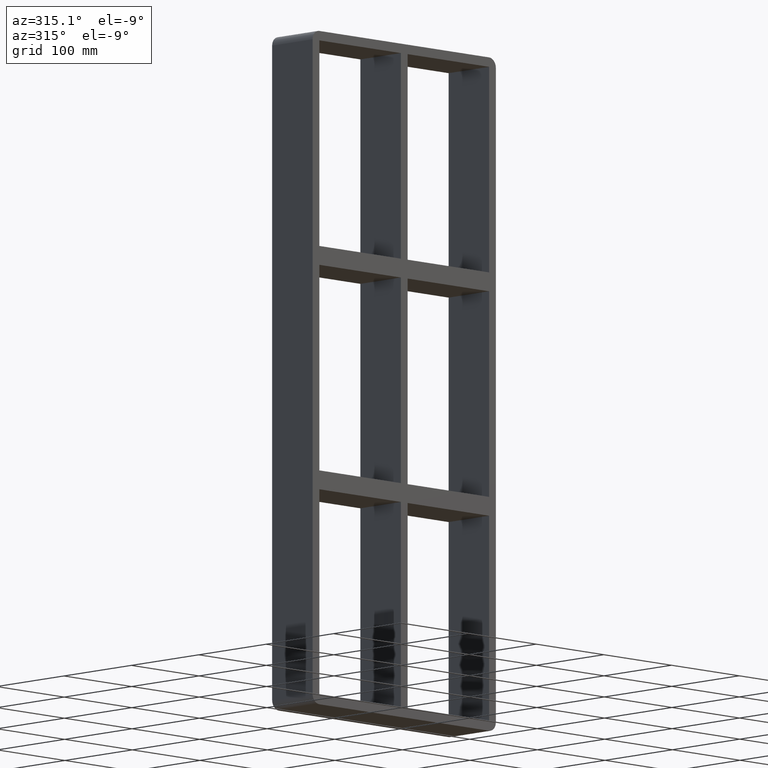
[diagram: clean part render]
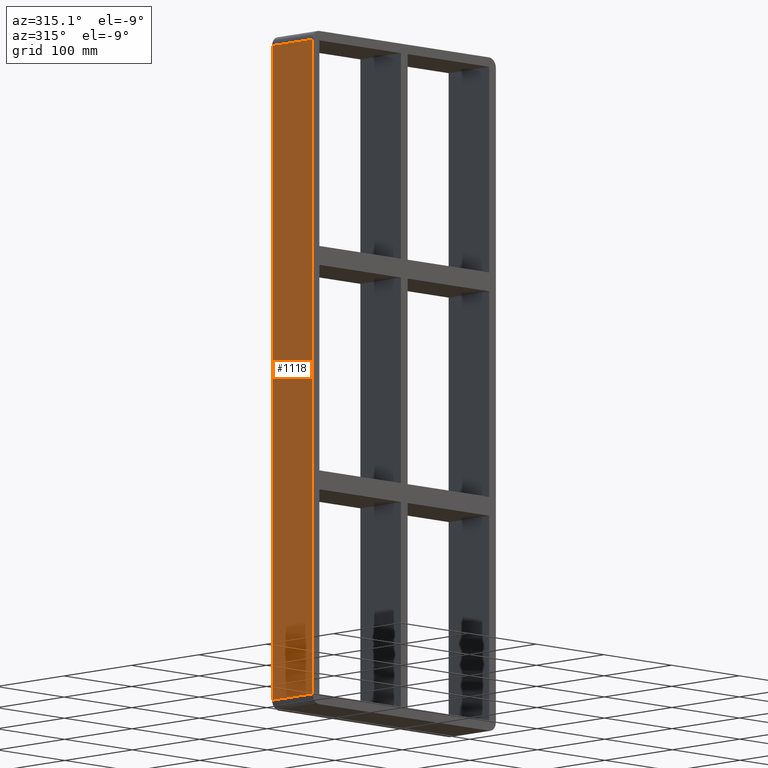
[diagram: same view with one face highlighted and labeled with its STEP entity id]
A machine part, auxiliary view. The second image highlights one B-rep face of the part: STEP entity #1118.
In plain terms, the highlighted planar face has unit normal (-1, 0, 0).
Its self-contained STEP definition (entity closure, byte-faithful):
#633=CARTESIAN_POINT('',(-135.5,57.0,-347.0));
#634=VERTEX_POINT('',#633);
#642=CARTESIAN_POINT('',(-135.5,57.0,347.0));
#643=VERTEX_POINT('',#642);
#644=CARTESIAN_POINT('',(-135.5,57.0,-347.0));
#645=DIRECTION('',(0.0,0.0,1.0));
#646=VECTOR('',#645,694.0);
#647=LINE('',#644,#646);
#648=EDGE_CURVE('',#634,#643,#647,.T.);
#970=CARTESIAN_POINT('',(-135.5,-3.0,347.0));
#971=VERTEX_POINT('',#970);
#979=CARTESIAN_POINT('',(-135.5,-3.0,-347.0));
#980=VERTEX_POINT('',#979);
#981=CARTESIAN_POINT('',(-135.5,-3.0,347.0));
#982=DIRECTION('',(0.0,0.0,-1.0));
#983=VECTOR('',#982,694.0);
#984=LINE('',#981,#983);
#985=EDGE_CURVE('',#971,#980,#984,.T.);
#1093=CARTESIAN_POINT('',(-135.5,-3.0,-347.0));
#1094=DIRECTION('',(0.0,1.0,0.0));
#1095=VECTOR('',#1094,60.0);
#1096=LINE('',#1093,#1095);
#1097=EDGE_CURVE('',#980,#634,#1096,.T.);
#1102=CARTESIAN_POINT('',(-135.5,0.0,-357.0));
#1103=DIRECTION('',(-1.0,0.0,0.0));
#1104=DIRECTION('',(0.0,0.0,1.0));
#1105=AXIS2_PLACEMENT_3D('',#1102,#1103,#1104);
#1106=PLANE('',#1105);
#1107=ORIENTED_EDGE('',*,*,#1097,.F.);
#1108=ORIENTED_EDGE('',*,*,#985,.F.);
#1109=CARTESIAN_POINT('',(-135.5,57.0,347.0));
#1110=DIRECTION('',(0.0,-1.0,0.0));
#1111=VECTOR('',#1110,60.0);
#1112=LINE('',#1109,#1111);
#1113=EDGE_CURVE('',#643,#971,#1112,.T.);
#1114=ORIENTED_EDGE('',*,*,#1113,.F.);
#1115=ORIENTED_EDGE('',*,*,#648,.F.);
#1116=EDGE_LOOP('',(#1107,#1108,#1114,#1115));
#1117=FACE_OUTER_BOUND('',#1116,.T.);
#1118=ADVANCED_FACE('',(#1117),#1106,.T.);